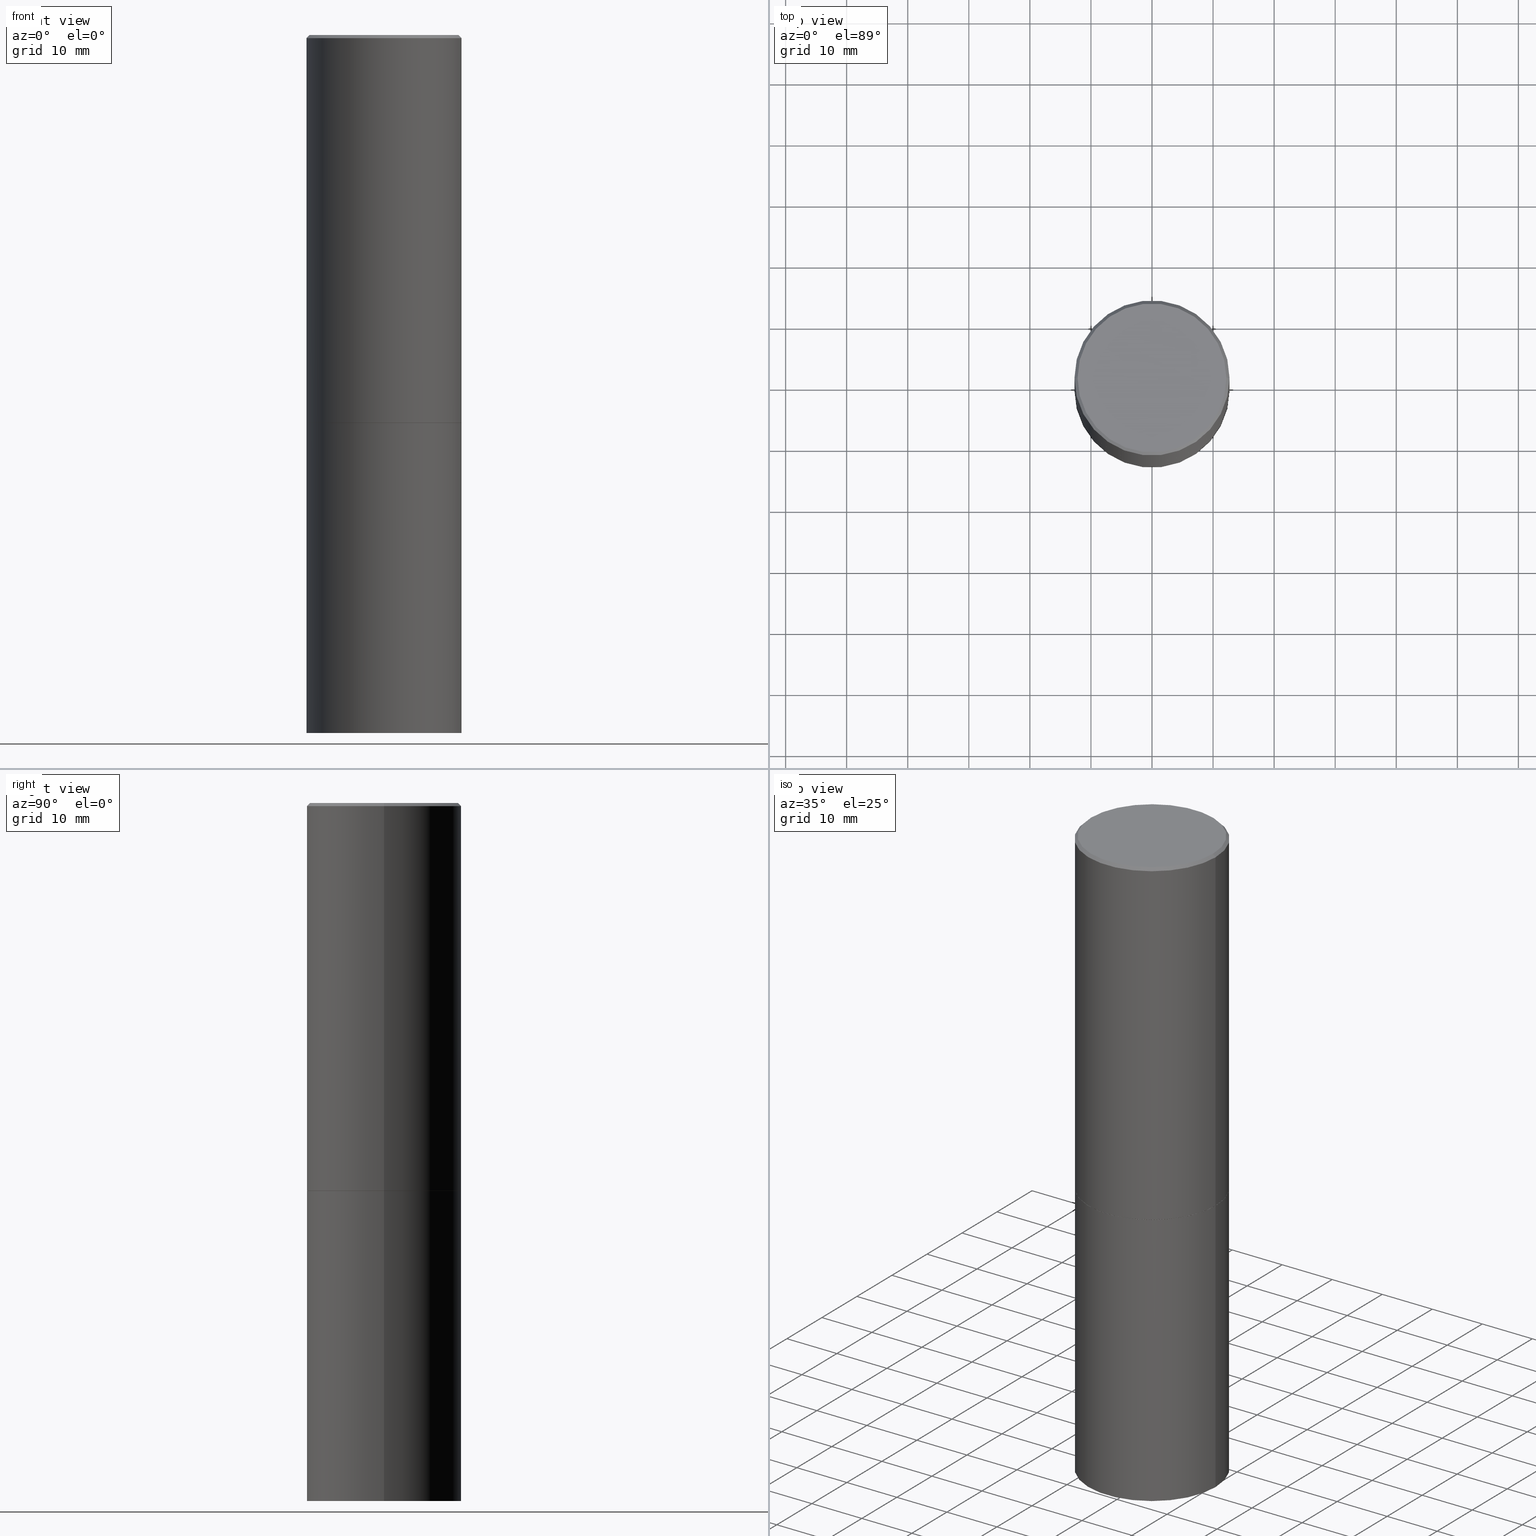
[diagram: canonical four-view strip — front | top / right | iso, engineering-drawing reading convention]
A machine part, canonical four-view strip (front | top / right | iso — engineering-drawing reading convention). The complete STEP part file that produces these views, byte-faithful:
ISO-10303-21;
HEADER;
FILE_DESCRIPTION (( 'STEP AP203' ),
    '1' );
FILE_NAME ('37144.STEP',
    '2024-02-27T20:38:34',
    ( '' ),
    ( '' ),
    'SwSTEP 2.0',
    'SolidWorks 2023',
    '' );
FILE_SCHEMA (( 'CONFIG_CONTROL_DESIGN' ));
ENDSEC;

DATA;
#1 = VERTEX_POINT ( 'NONE', #65 ) ;
#2 = CARTESIAN_POINT ( 'NONE',  ( 6.113672015462842613E-29, -8.728703347107864943E-15, -2.500000000000000000 ) ) ;
#3 = CARTESIAN_POINT ( 'NONE',  ( 6.113672015462842613E-29, -8.728703347107864943E-15, -2.500000000000000000 ) ) ;
#4 = ORIENTED_EDGE ( 'NONE', *, *, #177, .T. ) ;
#5 = CIRCLE ( 'NONE', #316, 0.5000000000000000000 ) ;
#6 = AXIS2_PLACEMENT_3D ( 'NONE', #3, #81, #79 ) ;
#7 = DIRECTION ( 'NONE',  ( 1.000000000000000000, 0.000000000000000000, 0.000000000000000000 ) ) ;
#8 = VERTEX_POINT ( 'NONE', #13 ) ;
#9 = APPROVAL_STATUS ( 'not_yet_approved' ) ;
#10 = DIRECTION ( 'NONE',  ( 1.000000000000000000, -6.982962677686266711E-15, 4.876036955247133327E-29 ) ) ;
#11 = EDGE_CURVE ( 'NONE', #288, #324, #269, .T. ) ;
#12 = PERSON_AND_ORGANIZATION ( #268, #264 ) ;
#13 = CARTESIAN_POINT ( 'NONE',  ( -0.4999999999999996669, 3.421651712066267691E-15, -0.02000000000000008021 ) ) ;
#14 = PERSON_AND_ORGANIZATION ( #268, #264 ) ;
#15 = ORIENTED_EDGE ( 'NONE', *, *, #330, .T. ) ;
#16 = ORIENTED_EDGE ( 'NONE', *, *, #277, .F. ) ;
#17 = EDGE_LOOP ( 'NONE', ( #236, #15, #226, #186 ) ) ;
#18 = CIRCLE ( 'NONE', #252, 0.5000000000000000000 ) ;
#19 = APPROVAL_PERSON_ORGANIZATION ( #12, #154, #239 ) ;
#20 = FACE_OUTER_BOUND ( 'NONE', #150, .T. ) ;
#21 = CARTESIAN_POINT ( 'NONE',  ( 4.890937612370293302E-31, -6.982962677686318726E-17, -0.02000000000000008021 ) ) ;
#22 = DIRECTION ( 'NONE',  ( -2.445468806185136597E-29, 3.491481338843145583E-15, 1.000000000000000000 ) ) ;
#23 = AXIS2_PLACEMENT_3D ( 'NONE', #2, #114, #199 ) ;
#24 = DIRECTION ( 'NONE',  ( -0.7071067811865469066, 2.468850131082250355E-15, -0.7071067811865481278 ) ) ;
#25 = PRODUCT_RELATED_PRODUCT_CATEGORY ( 'detail', '', ( #296 ) ) ;
#26 = FACE_OUTER_BOUND ( 'NONE', #207, .T. ) ;
#27 = CARTESIAN_POINT ( 'NONE',  ( 4.890937612370293302E-31, -6.982962677686318726E-17, -0.02000000000000008021 ) ) ;
#28 = EDGE_CURVE ( 'NONE', #8, #34, #107, .T. ) ;
#29 = AXIS2_PLACEMENT_3D ( 'NONE', #278, #144, #145 ) ;
#30 = LINE ( 'NONE', #281, #224 ) ;
#31 = CYLINDRICAL_SURFACE ( 'NONE', #366, 0.4999999999999998335 ) ;
#32 = ADVANCED_FACE ( 'NONE', ( #290 ), #297, .T. ) ;
#33 = DIRECTION ( 'NONE',  ( -2.445468806185136597E-29, 3.491481338843145583E-15, 1.000000000000000000 ) ) ;
#34 = VERTEX_POINT ( 'NONE', #265 ) ;
#35 = CONICAL_SURFACE ( 'NONE', #292, 0.4999999999999996669, 0.7853981633974473908 ) ;
#36 = DATE_AND_TIME ( #350, #97 ) ;
#37 = PERSON_AND_ORGANIZATION_ROLE ( 'creator' ) ;
#38 = ORIENTED_EDGE ( 'NONE', *, *, #362, .T. ) ;
#39 = APPROVAL ( #289, 'UNSPECIFIED' ) ;
#40 = DIRECTION ( 'NONE',  ( 1.000000000000000000, -6.982962677686266711E-15, 4.876176775795935793E-29 ) ) ;
#41 = CONICAL_SURFACE ( 'NONE', #173, 0.4989999999999999991, 0.7853981633975507526 ) ;
#42 = PERSON_AND_ORGANIZATION ( #268, #264 ) ;
#43 = EDGE_LOOP ( 'NONE', ( #344, #319, #16, #256 ) ) ;
#44 = PERSON_AND_ORGANIZATION_ROLE ( 'classification_officer' ) ;
#45 = LINE ( 'NONE', #156, #285 ) ;
#46 = CARTESIAN_POINT ( 'NONE',  ( 0.4999999999999998335, -3.491481338843132566E-15, 2.438088387897967336E-29 ) ) ;
#47 = CC_DESIGN_APPROVAL ( #154, ( #275 ) ) ;
#48 = CYLINDRICAL_SURFACE ( 'NONE', #302, 0.5000000000000000000 ) ;
#49 = FACE_OUTER_BOUND ( 'NONE', #146, .T. ) ;
#50 = CARTESIAN_POINT ( 'NONE',  ( 6.113672015462842613E-29, -8.728703347107864943E-15, -2.500000000000000000 ) ) ;
#51 = MANIFOLD_SOLID_BREP ( 'Body-Move/Copy2[1]', #66 ) ;
#52 = CIRCLE ( 'NONE', #124, 0.5000000000000000000 ) ;
#53 = PLANE ( 'NONE',  #77 ) ;
#54 = DIRECTION ( 'NONE',  ( 1.000000000000000000, -6.982962677686267499E-15, 4.876176775795936353E-29 ) ) ;
#55 = FACE_OUTER_BOUND ( 'NONE', #259, .T. ) ;
#56 = EDGE_CURVE ( 'NONE', #178, #321, #45, .T. ) ;
#57 = FACE_OUTER_BOUND ( 'NONE', #255, .T. ) ;
#58 = CC_DESIGN_PERSON_AND_ORGANIZATION_ASSIGNMENT ( #155, #261, ( #283 ) ) ;
#59 = CARTESIAN_POINT ( 'NONE',  ( 0.4799999999999995937, -3.396558832296479732E-15, 1.280553747032483033E-17 ) ) ;
#60 = DATE_AND_TIME ( #235, #230 ) ;
#61 = VERTEX_POINT ( 'NONE', #130 ) ;
#62 = VERTEX_POINT ( 'NONE', #242 ) ;
#63 = APPLICATION_CONTEXT ( 'configuration controlled 3d designs of mechanical parts and assemblies' ) ;
#64 = PERSON_AND_ORGANIZATION ( #268, #264 ) ;
#65 = CARTESIAN_POINT ( 'NONE',  ( -0.4989999999999999991, -5.177796641316743408E-15, -2.500000000000000000 ) ) ;
#66 = CLOSED_SHELL ( 'NONE', ( #32, #218, #206, #214 ) ) ;
#67 = CC_DESIGN_APPROVAL ( #98, ( #338 ) ) ;
#68 = DATE_AND_TIME ( #122, #231 ) ;
#69 = ORIENTED_EDGE ( 'NONE', *, *, #139, .F. ) ;
#70 = DIRECTION ( 'NONE',  ( 1.000000000000000000, -6.982962677686269077E-15, 0.000000000000000000 ) ) ;
#71 = CARTESIAN_POINT ( 'NONE',  ( 3.491481338843194098E-15, 0.4999999999999912292, -2.500000000000001776 ) ) ;
#72 = EDGE_CURVE ( 'NONE', #61, #62, #5, .T. ) ;
#73 = AXIS2_PLACEMENT_3D ( 'NONE', #123, #260, #40 ) ;
#74 = DIRECTION ( 'NONE',  ( 1.000000000000000000, -6.982962677686266711E-15, 0.000000000000000000 ) ) ;
#75 = FACE_OUTER_BOUND ( 'NONE', #99, .T. ) ;
#76 = CARTESIAN_POINT ( 'NONE',  ( 6.113672015462842613E-29, -8.728703347107864943E-15, -2.500000000000000000 ) ) ;
#77 = AXIS2_PLACEMENT_3D ( 'NONE', #71, #187, #301 ) ;
#78 = LINE ( 'NONE', #46, #108 ) ;
#79 = DIRECTION ( 'NONE',  ( 1.000000000000000000, -6.982962677686266711E-15, 0.000000000000000000 ) ) ;
#80 = DIRECTION ( 'NONE',  ( 1.000000000000000000, -6.982962677686267499E-15, 4.876176775795936353E-29 ) ) ;
#81 = DIRECTION ( 'NONE',  ( -2.445468806185136597E-29, 3.491481338843145583E-15, 1.000000000000000000 ) ) ;
#82 = VECTOR ( 'NONE', #244, 39.37007874015748143 ) ;
#83 = EDGE_CURVE ( 'NONE', #324, #288, #212, .T. ) ;
#84 = CARTESIAN_POINT ( 'NONE',  ( 0.5000000000000000000, -1.221669320461215371E-14, -2.499000000000000110 ) ) ;
#85 = ORIENTED_EDGE ( 'NONE', *, *, #111, .T. ) ;
#86 = COORDINATED_UNIVERSAL_TIME_OFFSET ( 5, 0, .BEHIND. ) ;
#87 = EDGE_CURVE ( 'NONE', #121, #365, #188, .T. ) ;
#88 = DIRECTION ( 'NONE',  ( 0.7071067811866199593, -2.468850131083015945E-15, 0.7071067811864750752 ) ) ;
#89 = CONICAL_SURFACE ( 'NONE', #6, 0.4989999999999999991, 0.7853981633975507526 ) ;
#90 = SHAPE_DEFINITION_REPRESENTATION ( #171, #103 ) ;
#91 = ORIENTED_EDGE ( 'NONE', *, *, #229, .F. ) ;
#92 = DATE_TIME_ROLE ( 'creation_date' ) ;
#93 = DIRECTION ( 'NONE',  ( -2.445468806185136597E-29, 3.491481338843145583E-15, 1.000000000000000000 ) ) ;
#94 = PERSON_AND_ORGANIZATION ( #268, #264 ) ;
#95 = DIRECTION ( 'NONE',  ( 1.000000000000000000, -6.982962677686266711E-15, 4.876036955247133327E-29 ) ) ;
#96 = CIRCLE ( 'NONE', #247, 0.5000000000000000000 ) ;
#97 = LOCAL_TIME ( 15, 38, 34.00000000000000000, #126 ) ;
#98 = APPROVAL ( #120, 'UNSPECIFIED' ) ;
#99 = EDGE_LOOP ( 'NONE', ( #210, #262, #228, #118 ) ) ;
#100 = FACE_OUTER_BOUND ( 'NONE', #267, .T. ) ;
#101 = CARTESIAN_POINT ( 'NONE',  ( 0.5000000000000000000, -1.920314736363729025E-14, -4.500000000000000000 ) ) ;
#102 = LOCAL_TIME ( 15, 38, 34.00000000000000000, #86 ) ;
#103 = ADVANCED_BREP_SHAPE_REPRESENTATION ( '37144', ( #51, #294, #219 ), #125 ) ;
#104 = CARTESIAN_POINT ( 'NONE',  ( 3.491481338843243007E-15, 0.4999999999999842903, -4.500000000000001776 ) ) ;
#105 = DIRECTION ( 'NONE',  ( -2.445468806185136597E-29, 3.491481338843145583E-15, 1.000000000000000000 ) ) ;
#106 = CARTESIAN_POINT ( 'NONE',  ( -0.5000000000000000000, -8.448070674724411945E-16, -2.499000000000000110 ) ) ;
#107 = CIRCLE ( 'NONE', #162, 0.4999999999999996669 ) ;
#108 = VECTOR ( 'NONE', #364, 39.37007874015748143 ) ;
#109 =( NAMED_UNIT ( * ) SI_UNIT ( $, .STERADIAN. ) SOLID_ANGLE_UNIT ( ) );
#110 = CYLINDRICAL_SURFACE ( 'NONE', #134, 0.4999999999999998335 ) ;
#111 = EDGE_CURVE ( 'NONE', #143, #321, #52, .T. ) ;
#112 = ORIENTED_EDGE ( 'NONE', *, *, #291, .F. ) ;
#113 = DIRECTION ( 'NONE',  ( -2.445468806185136597E-29, 3.491481338843145583E-15, 1.000000000000000000 ) ) ;
#114 = DIRECTION ( 'NONE',  ( -2.445468806185136597E-29, 3.491481338843145583E-15, 1.000000000000000000 ) ) ;
#115 = VECTOR ( 'NONE', #24, 39.37007874015748143 ) ;
#116 = CC_DESIGN_SECURITY_CLASSIFICATION ( #275, ( #338 ) ) ;
#117 = DIRECTION ( 'NONE',  ( 2.445468806185136597E-29, -3.491481338843145583E-15, -1.000000000000000000 ) ) ;
#118 = ORIENTED_EDGE ( 'NONE', *, *, #127, .F. ) ;
#119 = EDGE_CURVE ( 'NONE', #178, #1, #192, .T. ) ;
#120 = APPROVAL_STATUS ( 'not_yet_approved' ) ;
#121 = VERTEX_POINT ( 'NONE', #101 ) ;
#122 = CALENDAR_DATE ( 2024, 27, 2 ) ;
#123 = CARTESIAN_POINT ( 'NONE',  ( 0.000000000000000000, 0.000000000000000000, 0.000000000000000000 ) ) ;
#124 = AXIS2_PLACEMENT_3D ( 'NONE', #331, #217, #137 ) ;
#125 =( GEOMETRIC_REPRESENTATION_CONTEXT ( 3 ) GLOBAL_UNCERTAINTY_ASSIGNED_CONTEXT ( ( #326 ) ) GLOBAL_UNIT_ASSIGNED_CONTEXT ( ( #194, #340, #109 ) ) REPRESENTATION_CONTEXT ( 'NONE', 'WORKASPACE' ) );
#126 = COORDINATED_UNIVERSAL_TIME_OFFSET ( 5, 0, .BEHIND. ) ;
#127 = EDGE_CURVE ( 'NONE', #288, #8, #249, .T. ) ;
#128 = CARTESIAN_POINT ( 'NONE',  ( -3.131554243005659264E-46, 4.471029511141341874E-32, 1.280553747030123384E-17 ) ) ;
#129 = ORIENTED_EDGE ( 'NONE', *, *, #11, .F. ) ;
#130 = CARTESIAN_POINT ( 'NONE',  ( -0.5000000000000000000, -8.667471007150509990E-15, -2.500000000000000000 ) ) ;
#131 = LINE ( 'NONE', #332, #198 ) ;
#132 = LINE ( 'NONE', #223, #82 ) ;
#133 = DIRECTION ( 'NONE',  ( 1.000000000000000000, -6.982962677686265922E-15, 4.876176775795935793E-29 ) ) ;
#134 = AXIS2_PLACEMENT_3D ( 'NONE', #250, #169, #80 ) ;
#135 = CARTESIAN_POINT ( 'NONE',  ( 0.4999999999999996669, -3.500078625662626713E-15, -0.02000000000000008021 ) ) ;
#136 = EDGE_CURVE ( 'NONE', #321, #34, #78, .T. ) ;
#137 = DIRECTION ( 'NONE',  ( 1.000000000000000000, -6.982962677686265133E-15, 0.000000000000000000 ) ) ;
#138 =( LENGTH_UNIT ( ) NAMED_UNIT ( * ) SI_UNIT ( $, .METRE. ) );
#139 = EDGE_CURVE ( 'NONE', #121, #62, #164, .T. ) ;
#140 = AXIS2_PLACEMENT_3D ( 'NONE', #153, #241, #95 ) ;
#141 = AXIS2_PLACEMENT_3D ( 'NONE', #27, #117, #233 ) ;
#142 = FACE_OUTER_BOUND ( 'NONE', #184, .T. ) ;
#143 = VERTEX_POINT ( 'NONE', #106 ) ;
#144 = DIRECTION ( 'NONE',  ( -2.445468806185136597E-29, 3.491481338843145583E-15, 1.000000000000000000 ) ) ;
#145 = DIRECTION ( 'NONE',  ( 1.000000000000000000, -6.982962677686266711E-15, 0.000000000000000000 ) ) ;
#146 = EDGE_LOOP ( 'NONE', ( #203, #174 ) ) ;
#147 = PERSON_AND_ORGANIZATION_ROLE ( 'design_supplier' ) ;
#148 = DIRECTION ( 'NONE',  ( -2.445468806185136597E-29, 3.491481338843145583E-15, 1.000000000000000000 ) ) ;
#149 = SECURITY_CLASSIFICATION_LEVEL ( 'unclassified' ) ;
#150 = EDGE_LOOP ( 'NONE', ( #251, #170 ) ) ;
#151 = ORIENTED_EDGE ( 'NONE', *, *, #11, .T. ) ;
#152 = DATE_TIME_ROLE ( 'classification_date' ) ;
#153 = CARTESIAN_POINT ( 'NONE',  ( -3.131554243005659264E-46, 4.471029511141341874E-32, 1.280553747030123384E-17 ) ) ;
#154 = APPROVAL ( #9, 'UNSPECIFIED' ) ;
#155 = PERSON_AND_ORGANIZATION ( #268, #264 ) ;
#156 = CARTESIAN_POINT ( 'NONE',  ( 0.4989999999999999991, -1.221320172327331228E-14, -2.500000000000000000 ) ) ;
#157 = CARTESIAN_POINT ( 'NONE',  ( 0.5000000000000000000, -3.491481338843133355E-15, 2.438088387897967896E-29 ) ) ;
#158 = ADVANCED_FACE ( 'NONE', ( #20 ), #190, .F. ) ;
#159 = CARTESIAN_POINT ( 'NONE',  ( 0.000000000000000000, 0.000000000000000000, 0.000000000000000000 ) ) ;
#160 = CARTESIAN_POINT ( 'NONE',  ( 0.4989999999999999991, -1.221320172327331228E-14, -2.500000000000000000 ) ) ;
#161 = LINE ( 'NONE', #135, #355 ) ;
#162 = AXIS2_PLACEMENT_3D ( 'NONE', #213, #148, #325 ) ;
#163 = AXIS2_PLACEMENT_3D ( 'NONE', #76, #189, #193 ) ;
#164 = LINE ( 'NONE', #157, #312 ) ;
#165 = CC_DESIGN_DATE_AND_TIME_ASSIGNMENT ( #208, #92, ( #283 ) ) ;
#166 = DIRECTION ( 'NONE',  ( -0.7071067811866199593, 7.493145998870616062E-15, 0.7071067811864750752 ) ) ;
#167 = EDGE_CURVE ( 'NONE', #143, #8, #132, .T. ) ;
#168 = DESIGN_CONTEXT ( 'detailed design', #320, 'design' ) ;
#169 = DIRECTION ( 'NONE',  ( -2.445468806185136597E-29, 3.491481338843145583E-15, 1.000000000000000000 ) ) ;
#170 = ORIENTED_EDGE ( 'NONE', *, *, #362, .F. ) ;
#171 = PRODUCT_DEFINITION_SHAPE ( 'NONE', 'NONE',  #283 ) ;
#172 = CARTESIAN_POINT ( 'NONE',  ( -0.5000000000000000000, -8.667471007150509990E-15, -4.500000000000000000 ) ) ;
#173 = AXIS2_PLACEMENT_3D ( 'NONE', #196, #113, #342 ) ;
#174 = ORIENTED_EDGE ( 'NONE', *, *, #330, .F. ) ;
#175 = APPLICATION_PROTOCOL_DEFINITION ( 'international standard', 'config_control_design', 1994, #320 ) ;
#176 = ORIENTED_EDGE ( 'NONE', *, *, #357, .T. ) ;
#177 = EDGE_CURVE ( 'NONE', #365, #61, #131, .T. ) ;
#178 = VERTEX_POINT ( 'NONE', #160 ) ;
#179 = CC_DESIGN_PERSON_AND_ORGANIZATION_ASSIGNMENT ( #94, #44, ( #275 ) ) ;
#180 = ORIENTED_EDGE ( 'NONE', *, *, #167, .T. ) ;
#181 = APPROVAL_PERSON_ORGANIZATION ( #14, #98, #317 ) ;
#182 = LOCAL_TIME ( 15, 38, 34.00000000000000000, #343 ) ;
#183 = APPROVAL_ROLE ( '' ) ;
#184 = EDGE_LOOP ( 'NONE', ( #232, #129, #284, #238 ) ) ;
#185 = ADVANCED_FACE ( 'NONE', ( #75 ), #35, .T. ) ;
#186 = ORIENTED_EDGE ( 'NONE', *, *, #72, .F. ) ;
#187 = DIRECTION ( 'NONE',  ( 2.438088387897960049E-29, -3.491481338843145188E-15, -1.000000000000000000 ) ) ;
#188 = CIRCLE ( 'NONE', #279, 0.5000000000000000000 ) ;
#189 = DIRECTION ( 'NONE',  ( -2.445468806185136597E-29, 3.491481338843145583E-15, 1.000000000000000000 ) ) ;
#190 = PLANE ( 'NONE',  #323 ) ;
#191 = DIRECTION ( 'NONE',  ( 1.000000000000000000, -6.982962677686266711E-15, 4.876176775795935793E-29 ) ) ;
#192 = CIRCLE ( 'NONE', #163, 0.4989999999999999991 ) ;
#193 = DIRECTION ( 'NONE',  ( 1.000000000000000000, -6.982962677686266711E-15, 0.000000000000000000 ) ) ;
#194 =( CONVERSION_BASED_UNIT ( 'INCH', #337 ) LENGTH_UNIT ( ) NAMED_UNIT ( #314 ) );
#195 = EDGE_LOOP ( 'NONE', ( #176, #197 ) ) ;
#196 = CARTESIAN_POINT ( 'NONE',  ( 6.113672015462842613E-29, -8.728703347107864943E-15, -2.500000000000000000 ) ) ;
#197 = ORIENTED_EDGE ( 'NONE', *, *, #72, .T. ) ;
#198 = VECTOR ( 'NONE', #303, 39.37007874015748143 ) ;
#199 = DIRECTION ( 'NONE',  ( 1.000000000000000000, -6.982962677686269077E-15, 0.000000000000000000 ) ) ;
#200 = ADVANCED_FACE ( 'NONE', ( #100 ), #306, .F. ) ;
#201 = DIRECTION ( 'NONE',  ( 1.000000000000000000, -6.982962677686266711E-15, 0.000000000000000000 ) ) ;
#202 = APPROVAL_DATE_TIME ( #68, #154 ) ;
#203 = ORIENTED_EDGE ( 'NONE', *, *, #87, .F. ) ;
#204 = PERSON_AND_ORGANIZATION_ROLE ( 'design_owner' ) ;
#205 = AXIS2_PLACEMENT_3D ( 'NONE', #21, #22, #304 ) ;
#206 = ADVANCED_FACE ( 'NONE', ( #216 ), #53, .F. ) ;
#207 = EDGE_LOOP ( 'NONE', ( #315, #180, #91, #336 ) ) ;
#208 = DATE_AND_TIME ( #295, #182 ) ;
#209 = ORIENTED_EDGE ( 'NONE', *, *, #111, .F. ) ;
#210 = ORIENTED_EDGE ( 'NONE', *, *, #83, .F. ) ;
#211 = COORDINATED_UNIVERSAL_TIME_OFFSET ( 5, 0, .BEHIND. ) ;
#212 = CIRCLE ( 'NONE', #345, 0.4799999999999995937 ) ;
#213 = CARTESIAN_POINT ( 'NONE',  ( 4.890937612370293302E-31, -6.982962677686318726E-17, -0.02000000000000008021 ) ) ;
#214 = ADVANCED_FACE ( 'NONE', ( #246 ), #48, .T. ) ;
#215 = DIRECTION ( 'NONE',  ( -2.445468806185136597E-29, 3.491481338843145583E-15, 1.000000000000000000 ) ) ;
#216 = FACE_OUTER_BOUND ( 'NONE', #195, .T. ) ;
#217 = DIRECTION ( 'NONE',  ( -2.445468806185136597E-29, 3.491481338843145583E-15, 1.000000000000000000 ) ) ;
#218 = ADVANCED_FACE ( 'NONE', ( #49 ), #273, .T. ) ;
#219 = AXIS2_PLACEMENT_3D ( 'NONE', #258, #225, #7 ) ;
#220 = DIRECTION ( 'NONE',  ( -1.000000000000000000, 6.982962677686265922E-15, -4.876176775795935793E-29 ) ) ;
#221 = CC_DESIGN_PERSON_AND_ORGANIZATION_ASSIGNMENT ( #347, #37, ( #338 ) ) ;
#222 = DIRECTION ( 'NONE',  ( 1.000000000000000000, -6.982962677686265133E-15, 0.000000000000000000 ) ) ;
#223 = CARTESIAN_POINT ( 'NONE',  ( -0.4999999999999998335, 3.552713678800499746E-15, -2.459467545127452330E-29 ) ) ;
#224 = VECTOR ( 'NONE', #166, 39.37007874015748143 ) ;
#225 = DIRECTION ( 'NONE',  ( 0.000000000000000000, 0.000000000000000000, 1.000000000000000000 ) ) ;
#226 = ORIENTED_EDGE ( 'NONE', *, *, #139, .T. ) ;
#227 = CARTESIAN_POINT ( 'NONE',  ( 1.100460962783311469E-28, -1.571166602479415690E-14, -4.500000000000000000 ) ) ;
#228 = ORIENTED_EDGE ( 'NONE', *, *, #229, .T. ) ;
#229 = EDGE_CURVE ( 'NONE', #34, #8, #333, .T. ) ;
#230 = LOCAL_TIME ( 15, 38, 34.00000000000000000, #211 ) ;
#231 = LOCAL_TIME ( 15, 38, 34.00000000000000000, #322 ) ;
#232 = ORIENTED_EDGE ( 'NONE', *, *, #254, .F. ) ;
#233 = DIRECTION ( 'NONE',  ( -1.000000000000000000, 6.982962677686266711E-15, 0.000000000000000000 ) ) ;
#234 = EDGE_LOOP ( 'NONE', ( #353, #4, #318, #69 ) ) ;
#235 = CALENDAR_DATE ( 2024, 27, 2 ) ;
#236 = ORIENTED_EDGE ( 'NONE', *, *, #177, .F. ) ;
#237 = CALENDAR_DATE ( 2024, 27, 2 ) ;
#238 = ORIENTED_EDGE ( 'NONE', *, *, #28, .T. ) ;
#239 = APPROVAL_ROLE ( '' ) ;
#240 = DIRECTION ( 'NONE',  ( -2.445468806185136597E-29, 3.491481338843145583E-15, 1.000000000000000000 ) ) ;
#241 = DIRECTION ( 'NONE',  ( -2.445468806185136597E-29, 3.491481338843145583E-15, 1.000000000000000000 ) ) ;
#242 = CARTESIAN_POINT ( 'NONE',  ( 0.5000000000000000000, -1.222018468595099830E-14, -2.500000000000000000 ) ) ;
#243 = AXIS2_PLACEMENT_3D ( 'NONE', #104, #272, #220 ) ;
#244 = DIRECTION ( 'NONE',  ( -2.445468806185136877E-29, 3.491481338843145188E-15, 1.000000000000000000 ) ) ;
#245 = CARTESIAN_POINT ( 'NONE',  ( 4.890937612370293302E-31, -6.982962677686318726E-17, -0.02000000000000008021 ) ) ;
#246 = FACE_OUTER_BOUND ( 'NONE', #17, .T. ) ;
#247 = AXIS2_PLACEMENT_3D ( 'NONE', #227, #311, #201 ) ;
#248 = DIRECTION ( 'NONE',  ( 0.7071067811865469066, -7.319954787623254468E-15, -0.7071067811865481278 ) ) ;
#249 = LINE ( 'NONE', #328, #115 ) ;
#250 = CARTESIAN_POINT ( 'NONE',  ( 0.000000000000000000, 0.000000000000000000, 0.000000000000000000 ) ) ;
#251 = ORIENTED_EDGE ( 'NONE', *, *, #119, .F. ) ;
#252 = AXIS2_PLACEMENT_3D ( 'NONE', #363, #105, #222 ) ;
#253 = APPLICATION_PROTOCOL_DEFINITION ( 'international standard', 'config_control_design', 1994, #63 ) ;
#254 = EDGE_CURVE ( 'NONE', #324, #34, #161, .T. ) ;
#255 = EDGE_LOOP ( 'NONE', ( #293, #85, #266, #309 ) ) ;
#256 = ORIENTED_EDGE ( 'NONE', *, *, #56, .F. ) ;
#257 = CONICAL_SURFACE ( 'NONE', #141, 0.4999999999999996669, 0.7853981633974473908 ) ;
#258 = CARTESIAN_POINT ( 'NONE',  ( 0.000000000000000000, 0.000000000000000000, 0.000000000000000000 ) ) ;
#259 = EDGE_LOOP ( 'NONE', ( #112, #38, #349, #209 ) ) ;
#260 = DIRECTION ( 'NONE',  ( -2.445468806185136597E-29, 3.491481338843145583E-15, 1.000000000000000000 ) ) ;
#261 = PERSON_AND_ORGANIZATION_ROLE ( 'creator' ) ;
#262 = ORIENTED_EDGE ( 'NONE', *, *, #254, .T. ) ;
#263 = DATE_AND_TIME ( #237, #102 ) ;
#264 = ORGANIZATION ( 'UNSPECIFIED', 'UNSPECIFIED', '' ) ;
#265 = CARTESIAN_POINT ( 'NONE',  ( 0.4999999999999996669, -3.500078625662626713E-15, -0.02000000000000008021 ) ) ;
#266 = ORIENTED_EDGE ( 'NONE', *, *, #136, .T. ) ;
#267 = EDGE_LOOP ( 'NONE', ( #151, #299 ) ) ;
#268 = PERSON ( 'UNSPECIFIED', 'UNSPECIFIED', 'UNSPECIFIED', ('UNSPECIFIED'), ('UNSPECIFIED'), ('UNSPECIFIED') ) ;
#269 = CIRCLE ( 'NONE', #140, 0.4799999999999995937 ) ;
#270 = DIRECTION ( 'NONE',  ( -2.445468806185136877E-29, 3.491481338843145188E-15, 1.000000000000000000 ) ) ;
#271 = CIRCLE ( 'NONE', #23, 0.5000000000000000000 ) ;
#272 = DIRECTION ( 'NONE',  ( 2.438088387897960049E-29, -3.491481338843145188E-15, -1.000000000000000000 ) ) ;
#273 = PLANE ( 'NONE',  #243 ) ;
#274 = CARTESIAN_POINT ( 'NONE',  ( 3.351822085289404787E-15, 0.4799999999999995937, -1.669508273909557867E-15 ) ) ;
#275 = SECURITY_CLASSIFICATION ( '', '', #149 ) ;
#276 = DIRECTION ( 'NONE',  ( -1.000000000000000000, 6.982962677686265922E-15, -4.876176775795935793E-29 ) ) ;
#277 = EDGE_CURVE ( 'NONE', #321, #143, #18, .T. ) ;
#278 = CARTESIAN_POINT ( 'NONE',  ( 6.113672015462842613E-29, -8.728703347107864943E-15, -2.500000000000000000 ) ) ;
#279 = AXIS2_PLACEMENT_3D ( 'NONE', #351, #93, #74 ) ;
#280 = ADVANCED_FACE ( 'NONE', ( #26 ), #110, .T. ) ;
#281 = CARTESIAN_POINT ( 'NONE',  ( -0.4989999999999999991, -5.183095095664965021E-15, -2.500000000000000000 ) ) ;
#282 = MECHANICAL_CONTEXT ( 'NONE', #63, 'mechanical' ) ;
#283 = PRODUCT_DEFINITION ( 'UNKNOWN', '', #338, #168 ) ;
#284 = ORIENTED_EDGE ( 'NONE', *, *, #127, .T. ) ;
#285 = VECTOR ( 'NONE', #88, 39.37007874015748143 ) ;
#286 = PERSON_AND_ORGANIZATION ( #268, #264 ) ;
#287 = APPROVAL_DATE_TIME ( #60, #98 ) ;
#288 = VERTEX_POINT ( 'NONE', #313 ) ;
#289 = APPROVAL_STATUS ( 'not_yet_approved' ) ;
#290 = FACE_OUTER_BOUND ( 'NONE', #234, .T. ) ;
#291 = EDGE_CURVE ( 'NONE', #1, #143, #30, .T. ) ;
#292 = AXIS2_PLACEMENT_3D ( 'NONE', #245, #358, #360 ) ;
#293 = ORIENTED_EDGE ( 'NONE', *, *, #167, .F. ) ;
#294 = MANIFOLD_SOLID_BREP ( 'Body-Move/Copy2[2]', #300 ) ;
#295 = CALENDAR_DATE ( 2024, 27, 2 ) ;
#296 = PRODUCT ( '37144', '37144', '', ( #282 ) ) ;
#297 = CYLINDRICAL_SURFACE ( 'NONE', #73, 0.5000000000000000000 ) ;
#298 = CC_DESIGN_DATE_AND_TIME_ASSIGNMENT ( #36, #152, ( #275 ) ) ;
#299 = ORIENTED_EDGE ( 'NONE', *, *, #83, .T. ) ;
#300 = CLOSED_SHELL ( 'NONE', ( #310, #280, #185, #305, #348, #341, #158, #200 ) ) ;
#301 = DIRECTION ( 'NONE',  ( -1.000000000000000000, 6.982962677686265922E-15, -4.876176775795935793E-29 ) ) ;
#302 = AXIS2_PLACEMENT_3D ( 'NONE', #159, #359, #191 ) ;
#303 = DIRECTION ( 'NONE',  ( -2.445468806185136877E-29, 3.491481338843145188E-15, 1.000000000000000000 ) ) ;
#304 = DIRECTION ( 'NONE',  ( 1.000000000000000000, -6.982962677686266711E-15, 0.000000000000000000 ) ) ;
#305 = ADVANCED_FACE ( 'NONE', ( #142 ), #257, .T. ) ;
#306 = PLANE ( 'NONE',  #307 ) ;
#307 = AXIS2_PLACEMENT_3D ( 'NONE', #274, #327, #276 ) ;
#308 = CARTESIAN_POINT ( 'NONE',  ( 0.000000000000000000, 0.000000000000000000, 0.000000000000000000 ) ) ;
#309 = ORIENTED_EDGE ( 'NONE', *, *, #28, .F. ) ;
#310 = ADVANCED_FACE ( 'NONE', ( #334 ), #41, .T. ) ;
#311 = DIRECTION ( 'NONE',  ( -2.445468806185136597E-29, 3.491481338843145583E-15, 1.000000000000000000 ) ) ;
#312 = VECTOR ( 'NONE', #270, 39.37007874015748143 ) ;
#313 = CARTESIAN_POINT ( 'NONE',  ( -0.4799999999999995937, 3.386736898677836436E-15, 1.280553747027767124E-17 ) ) ;
#314 = DIMENSIONAL_EXPONENTS ( 1.000000000000000000, 0.000000000000000000, 0.000000000000000000, 0.000000000000000000, 0.000000000000000000, 0.000000000000000000, 0.000000000000000000 ) ;
#315 = ORIENTED_EDGE ( 'NONE', *, *, #277, .T. ) ;
#316 = AXIS2_PLACEMENT_3D ( 'NONE', #356, #215, #70 ) ;
#317 = APPROVAL_ROLE ( '' ) ;
#318 = ORIENTED_EDGE ( 'NONE', *, *, #357, .F. ) ;
#319 = ORIENTED_EDGE ( 'NONE', *, *, #291, .T. ) ;
#320 = APPLICATION_CONTEXT ( 'configuration controlled 3d designs of mechanical parts and assemblies' ) ;
#321 = VERTEX_POINT ( 'NONE', #84 ) ;
#322 = COORDINATED_UNIVERSAL_TIME_OFFSET ( 5, 0, .BEHIND. ) ;
#323 = AXIS2_PLACEMENT_3D ( 'NONE', #50, #329, #133 ) ;
#324 = VERTEX_POINT ( 'NONE', #59 ) ;
#325 = DIRECTION ( 'NONE',  ( 1.000000000000000000, -6.982962677686266711E-15, 0.000000000000000000 ) ) ;
#326 = UNCERTAINTY_MEASURE_WITH_UNIT (LENGTH_MEASURE( 1.000000000000000082E-05 ), #194, 'distance_accuracy_value', 'NONE');
#327 = DIRECTION ( 'NONE',  ( 2.438088387897960049E-29, -3.491481338843145188E-15, -1.000000000000000000 ) ) ;
#328 = CARTESIAN_POINT ( 'NONE',  ( -0.4999999999999996669, 3.421651712066267691E-15, -0.02000000000000008021 ) ) ;
#329 = DIRECTION ( 'NONE',  ( -2.438088387897960049E-29, 3.491481338843145188E-15, 1.000000000000000000 ) ) ;
#330 = EDGE_CURVE ( 'NONE', #365, #121, #96, .T. ) ;
#331 = CARTESIAN_POINT ( 'NONE',  ( 6.111226546656657010E-29, -8.725211865769021935E-15, -2.499000000000000110 ) ) ;
#332 = CARTESIAN_POINT ( 'NONE',  ( -0.5000000000000000000, 3.552713678800500929E-15, -2.459467545127452891E-29 ) ) ;
#333 = CIRCLE ( 'NONE', #205, 0.4999999999999996669 ) ;
#334 = FACE_OUTER_BOUND ( 'NONE', #43, .T. ) ;
#335 = CC_DESIGN_PERSON_AND_ORGANIZATION_ASSIGNMENT ( #64, #147, ( #338 ) ) ;
#336 = ORIENTED_EDGE ( 'NONE', *, *, #136, .F. ) ;
#337 = LENGTH_MEASURE_WITH_UNIT ( LENGTH_MEASURE( 0.02539999999999999897 ), #138 );
#338 = PRODUCT_DEFINITION_FORMATION_WITH_SPECIFIED_SOURCE ( 'ANY', '', #296, .NOT_KNOWN. ) ;
#339 = APPROVAL_PERSON_ORGANIZATION ( #42, #39, #183 ) ;
#340 =( NAMED_UNIT ( * ) PLANE_ANGLE_UNIT ( ) SI_UNIT ( $, .RADIAN. ) );
#341 = ADVANCED_FACE ( 'NONE', ( #55 ), #89, .T. ) ;
#342 = DIRECTION ( 'NONE',  ( 1.000000000000000000, -6.982962677686266711E-15, 0.000000000000000000 ) ) ;
#343 = COORDINATED_UNIVERSAL_TIME_OFFSET ( 5, 0, .BEHIND. ) ;
#344 = ORIENTED_EDGE ( 'NONE', *, *, #119, .T. ) ;
#345 = AXIS2_PLACEMENT_3D ( 'NONE', #128, #240, #10 ) ;
#346 = CIRCLE ( 'NONE', #29, 0.4989999999999999991 ) ;
#347 = PERSON_AND_ORGANIZATION ( #268, #264 ) ;
#348 = ADVANCED_FACE ( 'NONE', ( #57 ), #31, .T. ) ;
#349 = ORIENTED_EDGE ( 'NONE', *, *, #56, .T. ) ;
#350 = CALENDAR_DATE ( 2024, 27, 2 ) ;
#351 = CARTESIAN_POINT ( 'NONE',  ( 1.100460962783311469E-28, -1.571166602479415690E-14, -4.500000000000000000 ) ) ;
#352 = CC_DESIGN_PERSON_AND_ORGANIZATION_ASSIGNMENT ( #286, #204, ( #296 ) ) ;
#353 = ORIENTED_EDGE ( 'NONE', *, *, #87, .T. ) ;
#354 = APPROVAL_DATE_TIME ( #263, #39 ) ;
#355 = VECTOR ( 'NONE', #248, 39.37007874015748143 ) ;
#356 = CARTESIAN_POINT ( 'NONE',  ( 6.113672015462842613E-29, -8.728703347107864943E-15, -2.500000000000000000 ) ) ;
#357 = EDGE_CURVE ( 'NONE', #62, #61, #271, .T. ) ;
#358 = DIRECTION ( 'NONE',  ( 2.445468806185136597E-29, -3.491481338843145583E-15, -1.000000000000000000 ) ) ;
#359 = DIRECTION ( 'NONE',  ( -2.445468806185136597E-29, 3.491481338843145583E-15, 1.000000000000000000 ) ) ;
#360 = DIRECTION ( 'NONE',  ( -1.000000000000000000, 6.982962677686266711E-15, 0.000000000000000000 ) ) ;
#361 = CC_DESIGN_APPROVAL ( #39, ( #283 ) ) ;
#362 = EDGE_CURVE ( 'NONE', #1, #178, #346, .T. ) ;
#363 = CARTESIAN_POINT ( 'NONE',  ( 6.111226546656657010E-29, -8.725211865769021935E-15, -2.499000000000000110 ) ) ;
#364 = DIRECTION ( 'NONE',  ( -2.445468806185136877E-29, 3.491481338843145188E-15, 1.000000000000000000 ) ) ;
#365 = VERTEX_POINT ( 'NONE', #172 ) ;
#366 = AXIS2_PLACEMENT_3D ( 'NONE', #308, #33, #54 ) ;
ENDSEC;
END-ISO-10303-21;
